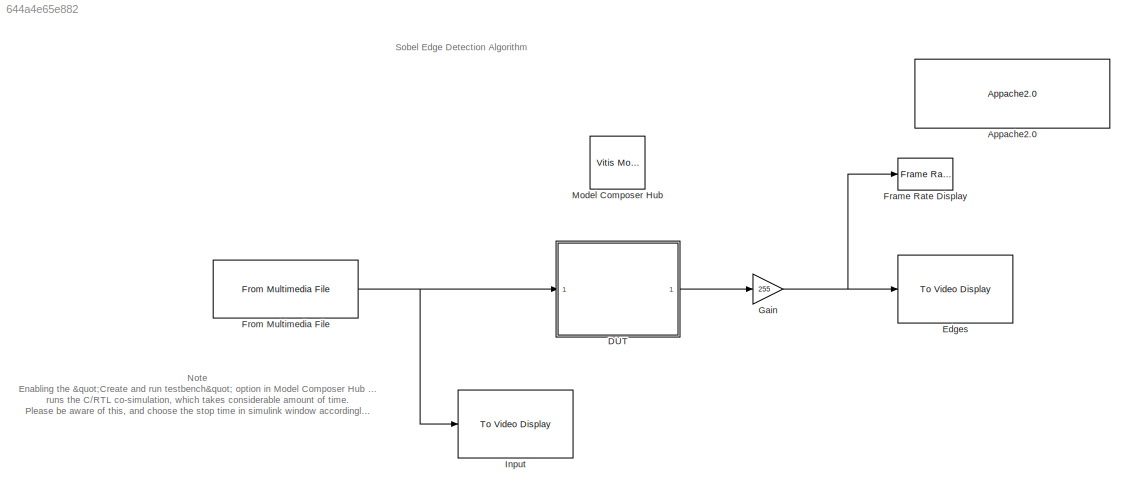
MODEL slx_644a4e65e882
KIND model
CONFIG AbsTol = auto
CONFIG EnableMultiTasking = on
CONFIG FixedStep = auto
CONFIG MaxStep = auto
CONFIG MinStep = auto
CONFIG PostLoadFcn = xmcHubUpdateInstalledDevice(gcs);
CONFIG RelTol = 1e-3
CONFIG SampleTimeConstraint = Unconstrained
CONFIG SolverName = VariableStepAuto
CONFIG StartTime = 0.0
CONFIG StopTime = inf
BLOCK [Reference] Appache2.0  REF=vmcUtilities/Appache2.0
  SourceBlock = vmcUtilities/Appache2.0
  SourceType = DocBlock
  UserDataPersistent = on
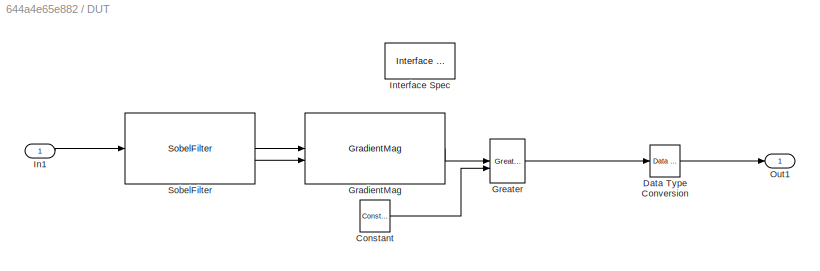
BLOCK [SubSystem] DUT
  ShowPortLabels = none
BLOCK [Reference] DUT/Constant  REF=hlsBasic/Constant
  SourceBlock = hlsBasic/Constant
  SourceType = Constant
BLOCK [Reference] DUT/Data Type Conversion  REF=hlsBasic/Data Type Conversion
  SourceBlock = hlsBasic/Data Type Conversion
  SourceType = DTC
BLOCK [Reference] DUT/GradientMag  REF=sobel_edge_detection_lib/GradientMag
  SourceBlock = sobel_edge_detection_lib/GradientMag
  SourceType = Import Function
BLOCK [Reference] DUT/Greater  REF=hlsBasic/Greater
  SourceBlock = hlsBasic/Greater
  SourceType = Greater
BLOCK [Inport] DUT/In1
BLOCK [Reference] DUT/Interface Spec  REF=hlsUtilities/Interface Spec
  NameLocation = top
  SourceBlock = hlsUtilities/Interface Spec
  SourceType = Interface Specification
BLOCK [Outport] DUT/Out1
BLOCK [Reference] DUT/SobelFilter  REF=sobel_edge_detection_lib/SobelFilter
  SourceBlock = sobel_edge_detection_lib/SobelFilter
  SourceType = Import Function
BLOCK [Reference] Edges  REF=visionsinks/To Video Display
  SourceBlock = visionsinks/To Video Display
  SourceType = To Video Display
BLOCK [Reference] Frame Rate Display  REF=visionsinks/Frame Rate
Display
  SourceBlock = visionsinks/Frame Rate\nDisplay
  SourceType = Frame Rate Display
BLOCK [Reference] From Multimedia File  REF=dspvision/From Multimedia File
  SourceBlock = dspvision/From Multimedia File
  SourceType = From Multimedia File
BLOCK [Gain] Gain
  Gain = 255
  OutDataTypeStr = uint8
BLOCK [Reference] Input  REF=visionsinks/To Video Display
  SourceBlock = visionsinks/To Video Display
  SourceType = To Video Display
BLOCK [Reference] Model Composer Hub  REF=vmcUtilities/Vitis Model Composer Hub
  SourceBlock = vmcUtilities/Vitis Model Composer Hub
  SourceType = VMC Hub
  Tag = genX
  UserDataPersistent = on
ANNOTATION (root): Note Enabling the "Create and run testbench" option in Model Composer Hub block runs the C/RTL co-simulation, which takes considerable amount of time. Please be aware of this, and choose the stop time in simulink window accordingly.
ANNOTATION (root): Sobel Edge Detection Algorithm
LINE DUT/Constant:1 -> DUT/Greater:2
LINE DUT/Data Type Conversion:1 -> DUT/Out1:1
LINE DUT/GradientMag:1 -> DUT/Greater:1
LINE DUT/Greater:1 -> DUT/Data Type Conversion:1
LINE DUT/In1:1 -> DUT/SobelFilter:1
LINE DUT/SobelFilter:1 -> DUT/GradientMag:1
LINE DUT/SobelFilter:2 -> DUT/GradientMag:2
LINE DUT:1 -> Gain:1
NET From Multimedia File:1 -> DUT:1, Input:1
NET Gain:1 -> Edges:1, Frame Rate Display:1
note: NET lines group one-source signal fan-out (src -> all destinations, sorted); 1:1 wires keep LINE
